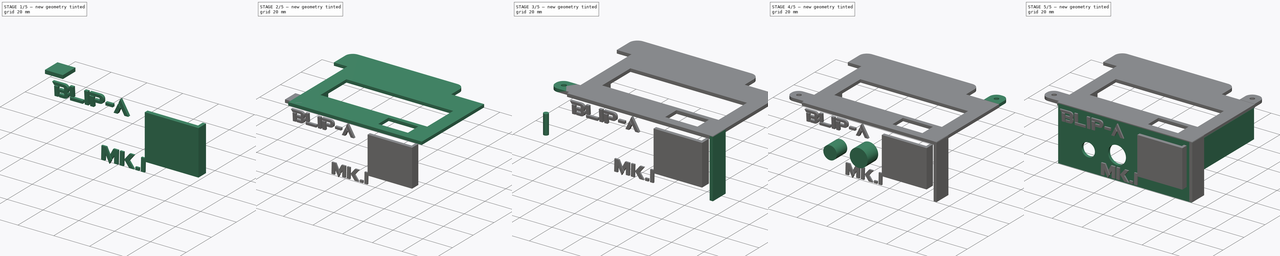
[diagram: build sequence overview — one tinted view per stage of 5, left to right]
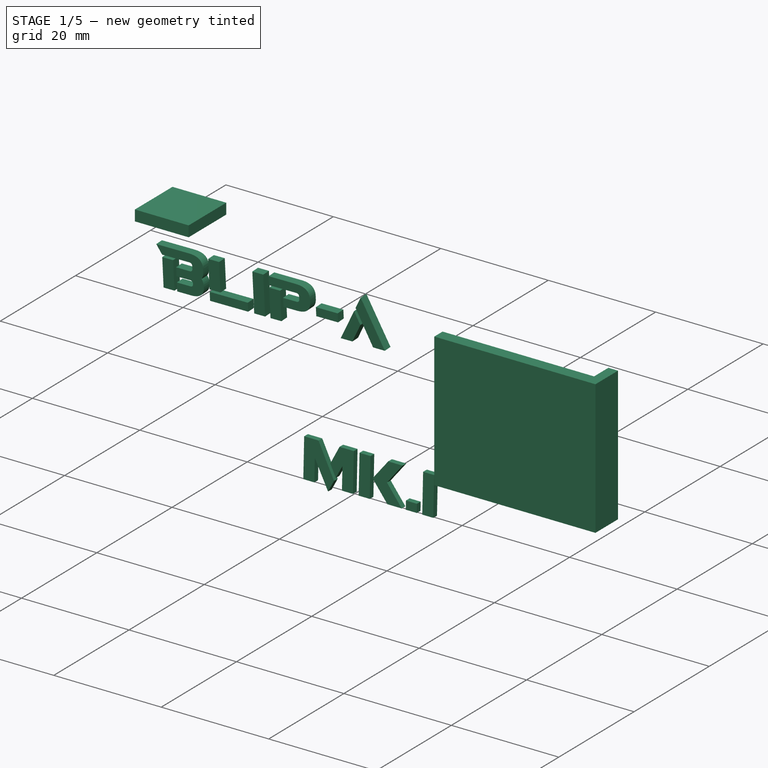
[diagram: stage 1 of 5 — iso view after this stage's code; geometry added in this stage tinted green]
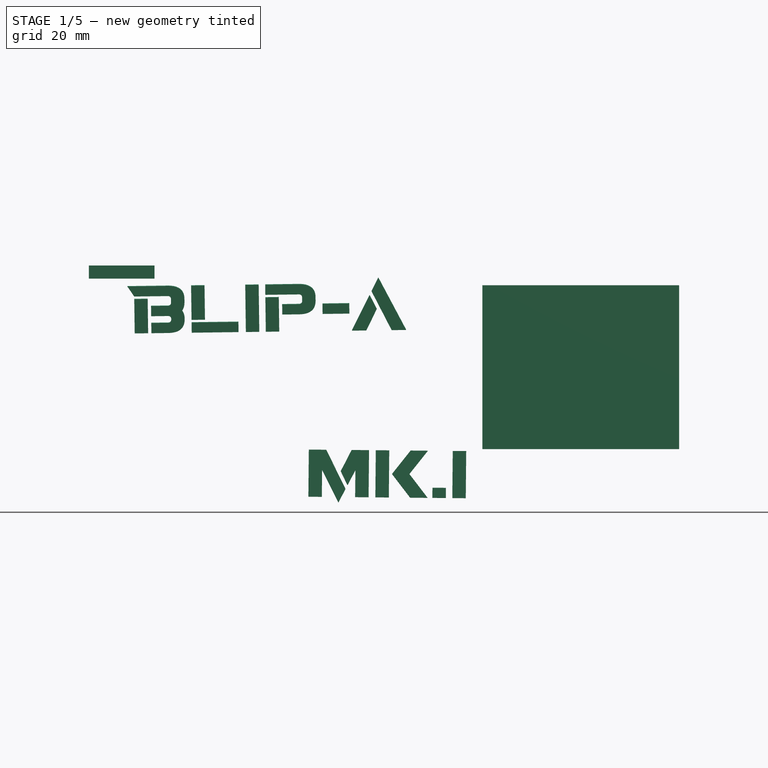
[diagram: stage 1 of 5 — front view after this stage's code; geometry added in this stage tinted green]
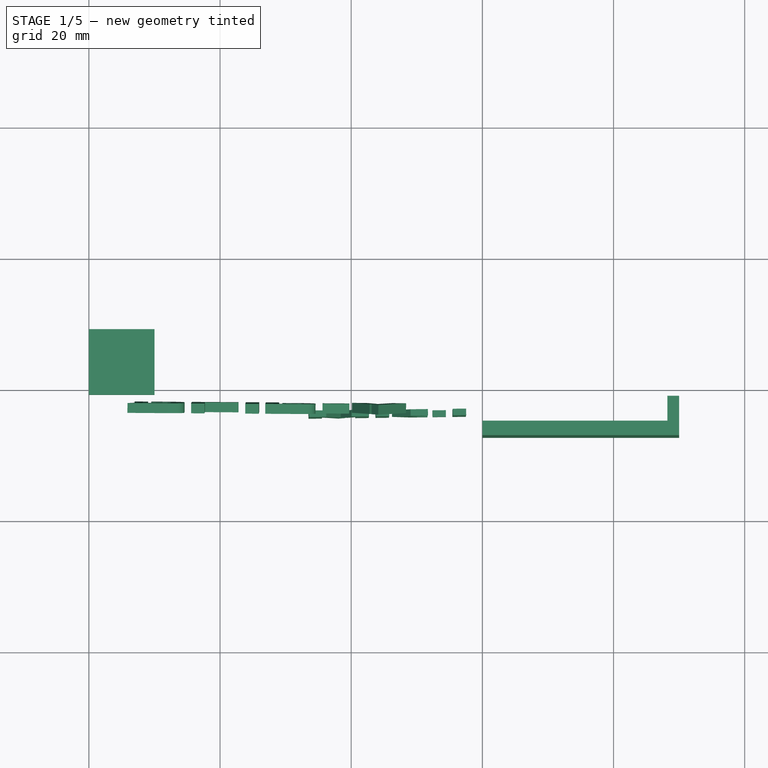
[diagram: stage 1 of 5 — top view after this stage's code; geometry added in this stage tinted green]
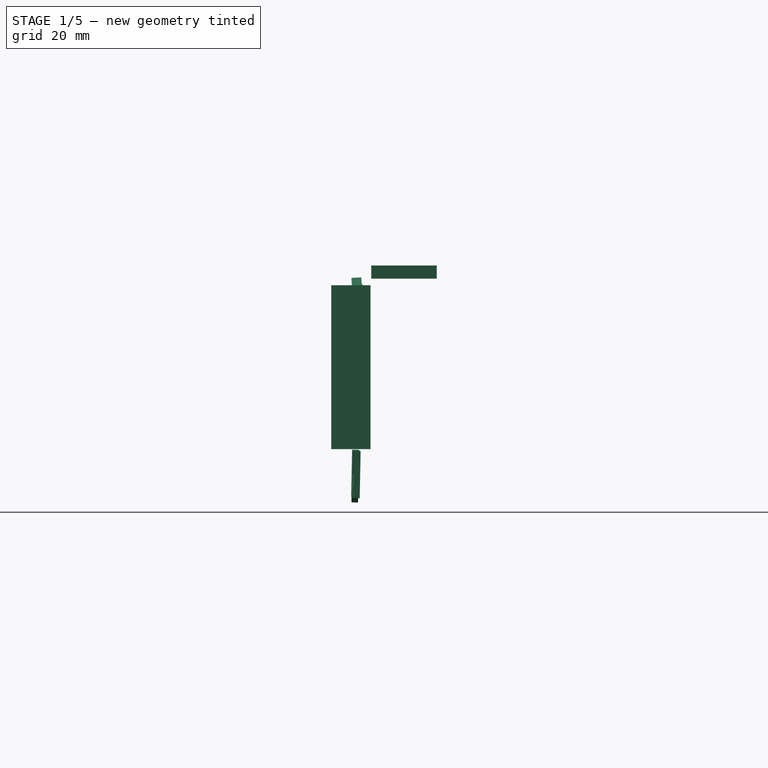
[diagram: stage 1 of 5 — right view after this stage's code; geometry added in this stage tinted green]
FCSTD DOCUMENT  (FreeCAD 0.20R29177 +426 (Git))
Label: BlipA_part2
License: All rights reserved
LicenseURL: http://en.wikipedia.org/wiki/All_rights_reserved
objects: Part::Box×10, Part::Fillet×6, Part::Cut×6, Part::Cylinder×4, Part::Extrusion×3, Part::FeaturePython×2, Part::Part2DObjectPython×2, Sketcher::SketchObject×1
note: 34 computed .brp shape members not serialized (recipe doc carries the construction recipe); baked Part::Feature solids carry a one-line shape summary decoded from their .brp

FEATURE [Part::Box] Box041  label="Cubo005"
  AttacherType = Attacher::AttachEngine3D
  Height = 30
  Length = 29
  Placement = pos=(-0.8,-43.3,-28.9) rot=(0,0,1;0rad)
  Width = 8
FEATURE [Part::Box] Box042  label="Cubo006"
  AttacherType = Attacher::AttachEngine3D
  Height = 25
  Length = 30
  Placement = pos=(0,-45.5,-25.6) rot=(0,0,1;0rad)
  Width = 6
FEATURE [Part::Cut] Cut022
  Base = -> Box042
  Placement = pos=(0,-1.9,2.2) rot=(0,0,1;0rad)
  Tool = -> Box041
FEATURE [Part::Part2DObjectPython] ShapeString  # Draft 2D object (typed FeaturePython)
  FontFile = <userpath>/Documents/3DPrinting/Font/Revamped.otf
  MakeFace = true
  Placement = pos=(-61.6182,13.5134,4.26813) rot=(0.912029,0.400447,0.08857;0.113955rad)
  Size = 8
  String = Blip-A
  Tracking = 0
FEATURE [Part::Part2DObjectPython] ShapeString001  # Draft 2D object (typed FeaturePython)
  FontFile = <userpath>/Documents/3DPrinting/Font/Revamped.otf
  MakeFace = true
  Placement = pos=(-38.1505,1.77038,1.95726) rot=(0.912029,0.400447,0.08857;0.113955rad)
  Size = 8
  String = Mk.I
  Tracking = 0
FEATURE [Part::Extrusion] Extrude003
  Base = -> ShapeString
  Dir = (0.0460582,-0.103476,0.993565)
  DirMode = 2
  FaceMakerClass = Part::FaceMakerBullseye
  LengthFwd = 1.5
  LengthRev = 0
  Placement = pos=(8.24493,-41.8239,-19.2348) rot=(0.999277,-0.027574,-0.026167;1.51916rad)
  Solid = false
  Symmetric = false
FEATURE [Part::Extrusion] Extrude005
  Base = -> ShapeString001
  Dir = (0.0460582,-0.103476,0.993565)
  DirMode = 2
  FaceMakerClass = Part::FaceMakerBullseye
  LengthFwd = 1
  LengthRev = 0
  Placement = pos=(11.1114,-42.9205,-33.2679) rot=(0.999601,-0.00761,-0.027188;1.44804rad)
  Solid = false
  Symmetric = false
FEATURE [Part::Box] Box043  label="Cubo007"
  AttacherType = Attacher::AttachEngine3D
  Height = 2
  Length = 10
  Placement = pos=(-60,-41.3,2.6) rot=(0,0,1;0rad)
  Width = 10
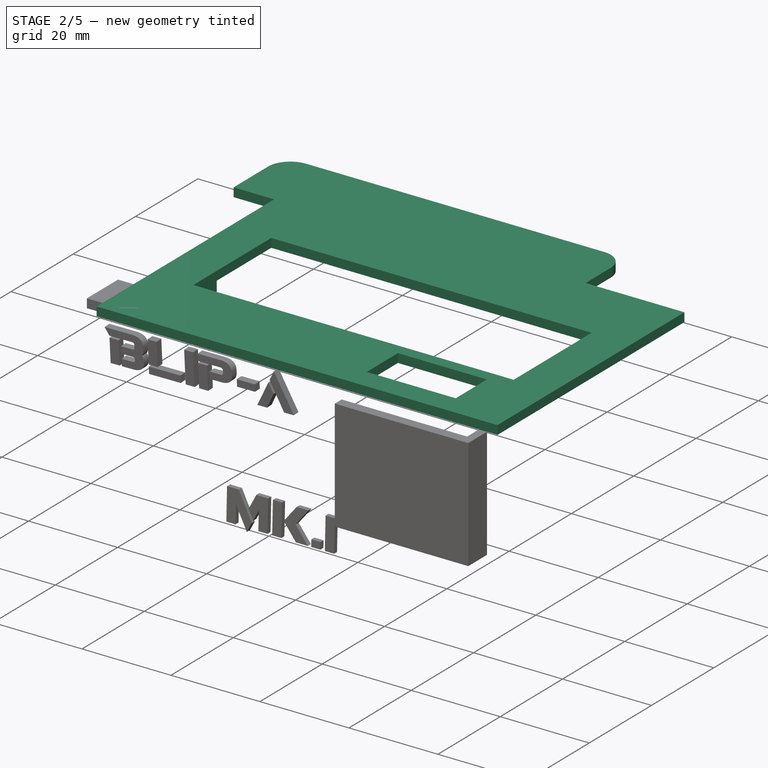
[diagram: stage 2 of 5 — iso view after this stage's code; geometry added in this stage tinted green]
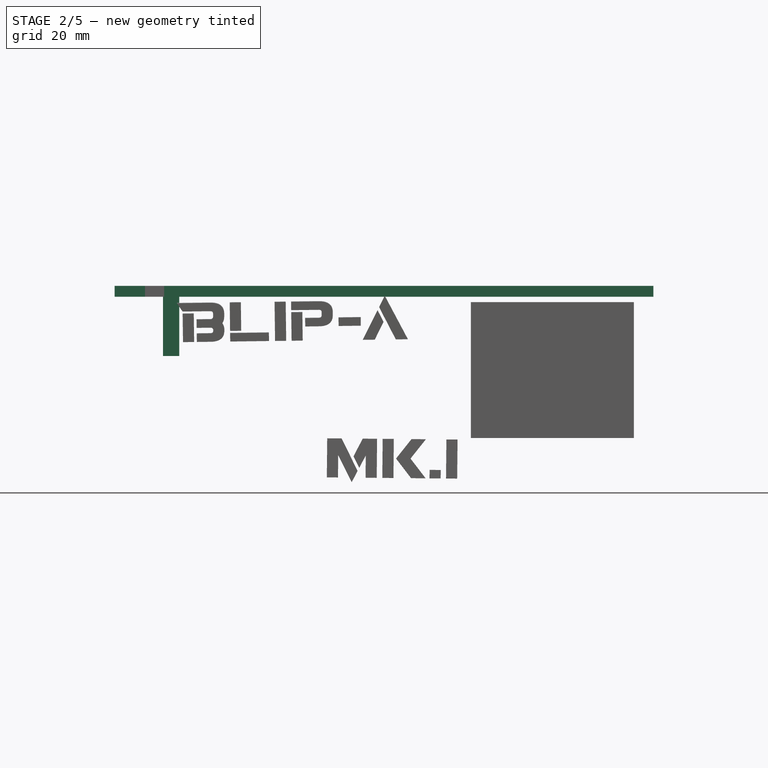
[diagram: stage 2 of 5 — front view after this stage's code; geometry added in this stage tinted green]
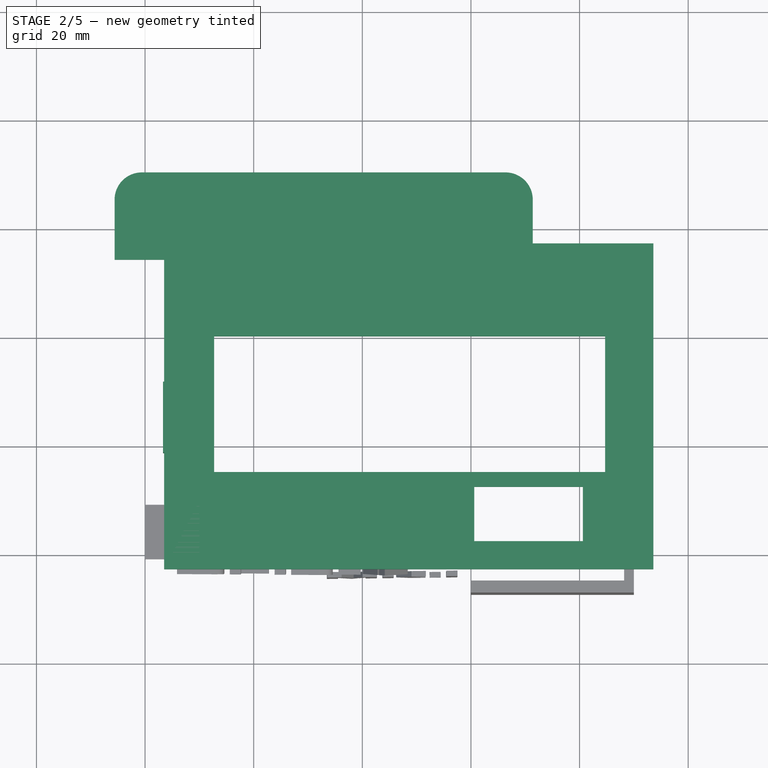
[diagram: stage 2 of 5 — top view after this stage's code; geometry added in this stage tinted green]
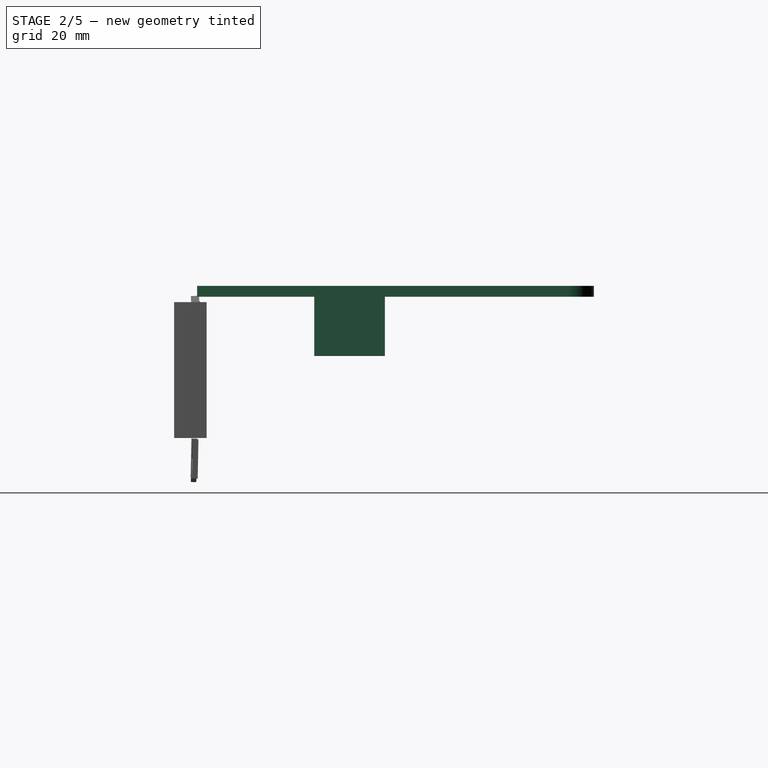
[diagram: stage 2 of 5 — right view after this stage's code; geometry added in this stage tinted green]
FEATURE [Sketcher::SketchObject] Sketch003
  FullyConstrained = false
  sketch-geometry (12):
    g0: LineSegment StartX=33.596 StartY=16.8407 StartZ=0 EndX=11.3823 EndY=16.8407 EndZ=0
    g1: LineSegment StartX=-65.6095 StartY=29.8991 StartZ=0 EndX=-65.6095 EndY=13.8239 EndZ=0
    g2: LineSegment StartX=33.596 StartY=16.8407 StartZ=0 EndX=33.596 EndY=-43.1593 EndZ=0
    g3: LineSegment StartX=-56.4982 StartY=-43.1593 StartZ=0 EndX=33.596 EndY=-43.1593 EndZ=0
    g4: LineSegment StartX=-47.2828 StartY=-0.28 StartZ=0 EndX=-47.2828 EndY=-25.28 EndZ=0
    g5: LineSegment StartX=-47.2828 StartY=-25.28 StartZ=0 EndX=24.7172 EndY=-25.28 EndZ=0
    g6: LineSegment StartX=24.7172 StartY=-25.28 StartZ=0 EndX=24.7172 EndY=-0.28 EndZ=0
    g7: LineSegment StartX=-47.2828 StartY=-0.28 StartZ=0 EndX=24.7172 EndY=-0.28 EndZ=0
    g8: LineSegment StartX=-65.6095 StartY=29.8991 StartZ=0 EndX=11.3823 EndY=29.8991 EndZ=0
    g9: LineSegment StartX=11.3823 StartY=29.8991 StartZ=0 EndX=11.3823 EndY=16.8407 EndZ=0
    g10: LineSegment StartX=-56.4982 StartY=-43.1593 StartZ=0 EndX=-56.4982 EndY=13.8239 EndZ=0
    g11: LineSegment StartX=-56.4982 StartY=13.8239 StartZ=0 EndX=-65.6095 EndY=13.8239 EndZ=0
  constraints (27):
    c: Horizontal(g0)
    c: Vertical(g1)
    c: Coincident(g2,g0)
    c: Vertical(g2)
    c: Distance(g2) = 60
    c: Coincident(g3,g2)
    c: Vertical(g4)
    c: Coincident(g5,g4)
    c: Horizontal(g5)
    c: Coincident(g6,g5)
    c: Vertical(g6)
    c: Coincident(g7,g4)
    c: Coincident(g7,g6)
    c: Horizontal(g7)
    c: Distance(g4) = 25
    c: Distance(g5) = 72
    c: Horizontal(g8)
    c: Coincident(g8,g1)
    c: Coincident(g9,g8)
    c: Vertical(g9)
    c: Coincident(g9,g0)
    c: Vertical(g10)
    c: Coincident(g11,g10)
    c: Horizontal(g11)
    c: Coincident(g1,g11)
    c: Coincident(g3,g10)
    c: Horizontal(g3)
FEATURE [Part::Extrusion] Extrude002
  Base = -> Sketch003
  Dir = (0,0,1)
  DirMode = 2
  FaceMakerClass = Part::FaceMakerBullseye
  LengthFwd = 0
  LengthRev = 2
  Placement = pos=(0,0,-1.8) rot=(0,0,1;0rad)
  Solid = true
  Symmetric = false
FEATURE [Part::Fillet] Fillet009
  Base = -> Extrude002
  Edges = 1 edges r=5: [Edge14]
FEATURE [Part::Fillet] Fillet010  label="Cover"
  Base = -> Fillet009
  Edges = 1 edges r=5: [Edge4]
  Placement = pos=(0,0,1) rot=(0,0,1;0rad)
FEATURE [Part::Box] Box039  label="Cubo003"
  AttacherType = Attacher::AttachEngine3D
  Height = 10
  Length = 20
  Placement = pos=(0.6,-38,-7.6) rot=(0,0,1;0rad)
  Width = 10
FEATURE [Part::Cut] Cut021
  Base = -> Fillet010
  Placement = pos=(0,0,5.4) rot=(0,0,1;0rad)
  Tool = -> Box039
FEATURE [Part::Box] Box040  label="Cubo004"
  AttacherType = Attacher::AttachEngine3D
  Height = 11
  Length = 3
  Placement = pos=(-56.7,-21.6,-8.3) rot=(0,0,1;0rad)
  Width = 13
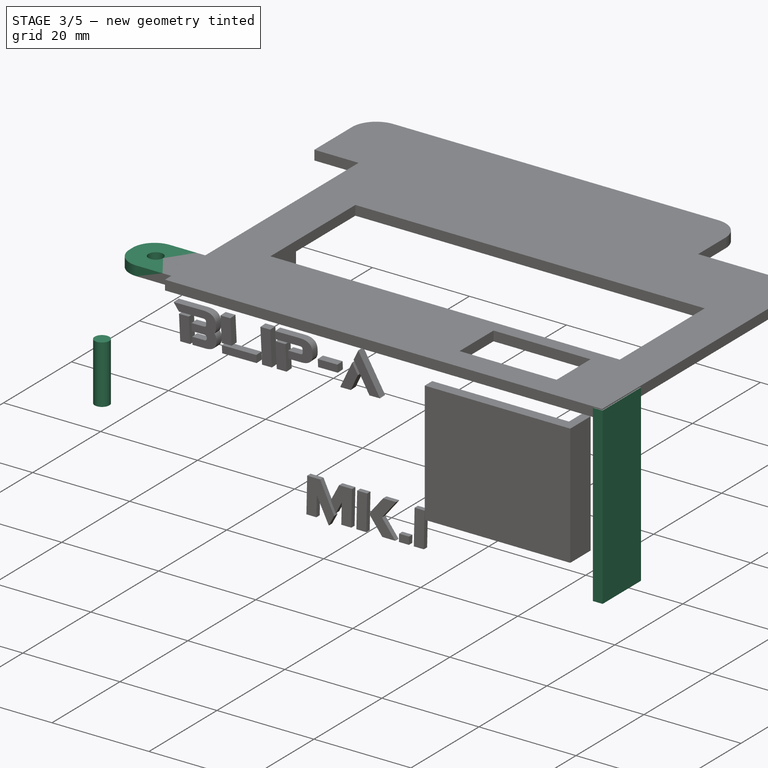
[diagram: stage 3 of 5 — iso view after this stage's code; geometry added in this stage tinted green]
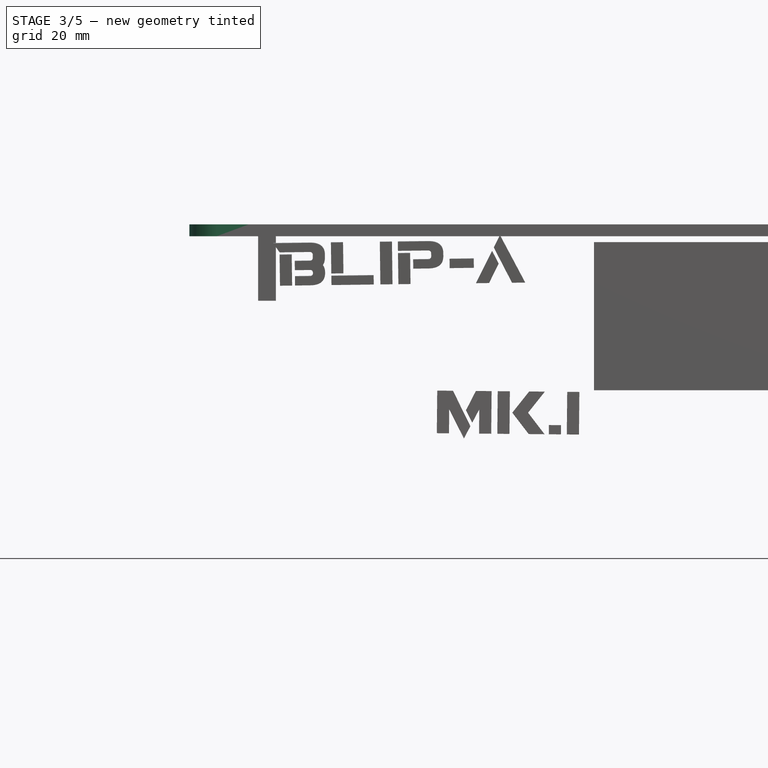
[diagram: stage 3 of 5 — front view after this stage's code; geometry added in this stage tinted green]
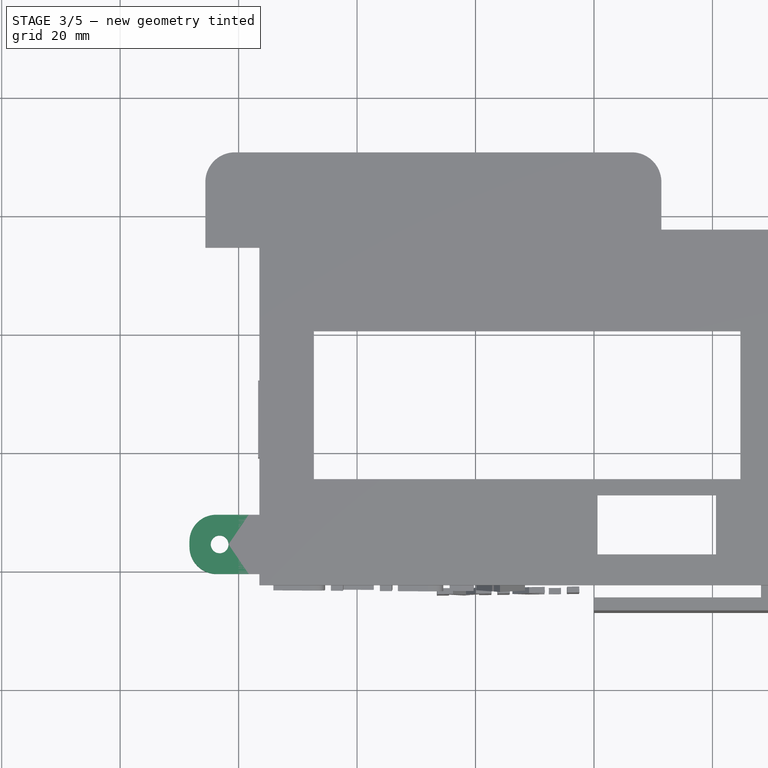
[diagram: stage 3 of 5 — top view after this stage's code; geometry added in this stage tinted green]
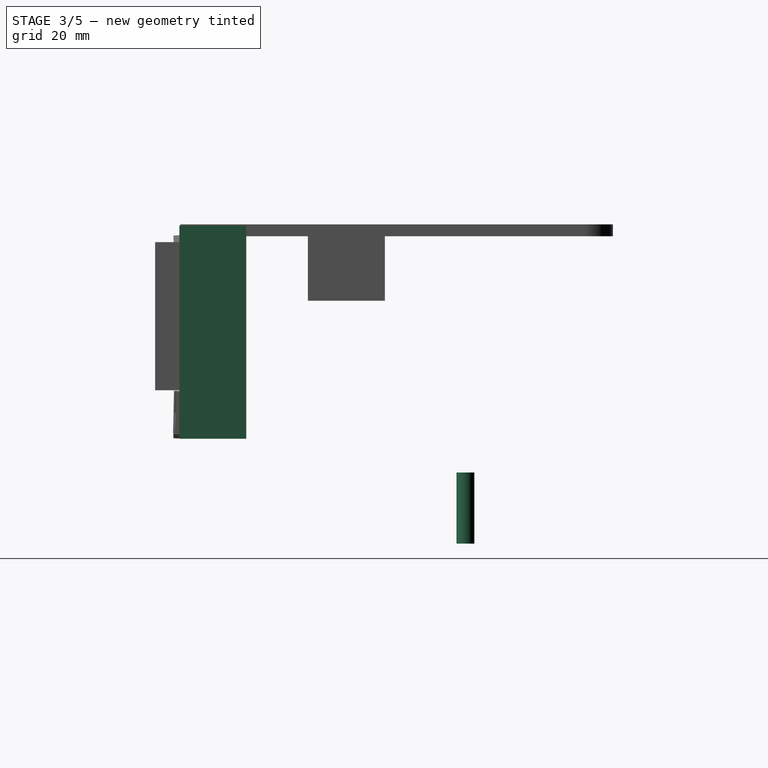
[diagram: stage 3 of 5 — right view after this stage's code; geometry added in this stage tinted green]
FEATURE [Part::Cylinder] Cylinder003
  Angle = 360
  AttacherType = Attacher::AttachEngine3D
  FirstAngle = 0
  Height = 12
  Placement = pos=(-103.2,5,-49.3) rot=(0,0,1;0rad)
  Radius = 1.5
  SecondAngle = 0
FEATURE [Part::Box] Box033  label="Cube030"
  AttacherType = Attacher::AttachEngine3D
  Height = 2
  Length = 10
  Placement = pos=(-108.3,0,-49.2) rot=(0,0,1;0rad)
  Width = 10
FEATURE [Part::Cylinder] Cylinder002  label="Cylinder"
  Angle = 360
  AttacherType = Attacher::AttachEngine3D
  FirstAngle = 0
  Height = 23
  Placement = pos=(-103.2,5,-59.77) rot=(0,0,1;0rad)
  Radius = 1.5
  SecondAngle = 0
FEATURE [Part::Cut] Cut017
  Base = -> Box033
  Tool = -> Cylinder002
FEATURE [Part::Fillet] Fillet011
  Base = -> Cut017
  Edges = 1 edges r=4.5: [Edge3]
FEATURE [Part::Fillet] Fillet012
  Base = -> Fillet011
  Edges = 1 edges r=4.6: [Edge2]
  Placement = pos=(40,-41.3,51.8) rot=(0,0,1;0rad)
FEATURE [Part::Box] Box038  label="Cubo002"
  AttacherType = Attacher::AttachEngine3D
  Height = 36
  Length = 2
  Placement = pos=(31.8,-43.3,-31.6) rot=(0,0,1;0rad)
  Width = 11.3
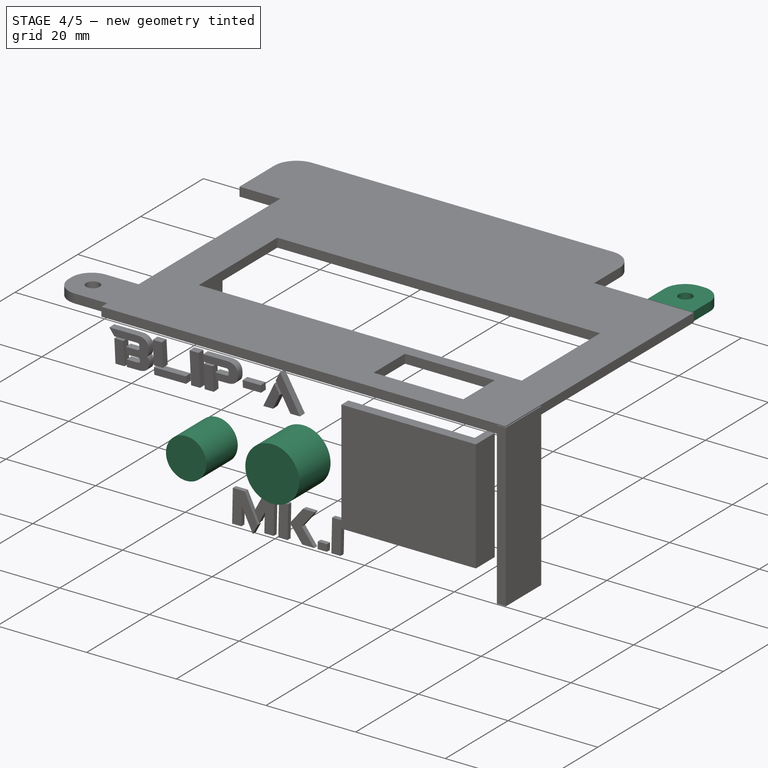
[diagram: stage 4 of 5 — iso view after this stage's code; geometry added in this stage tinted green]
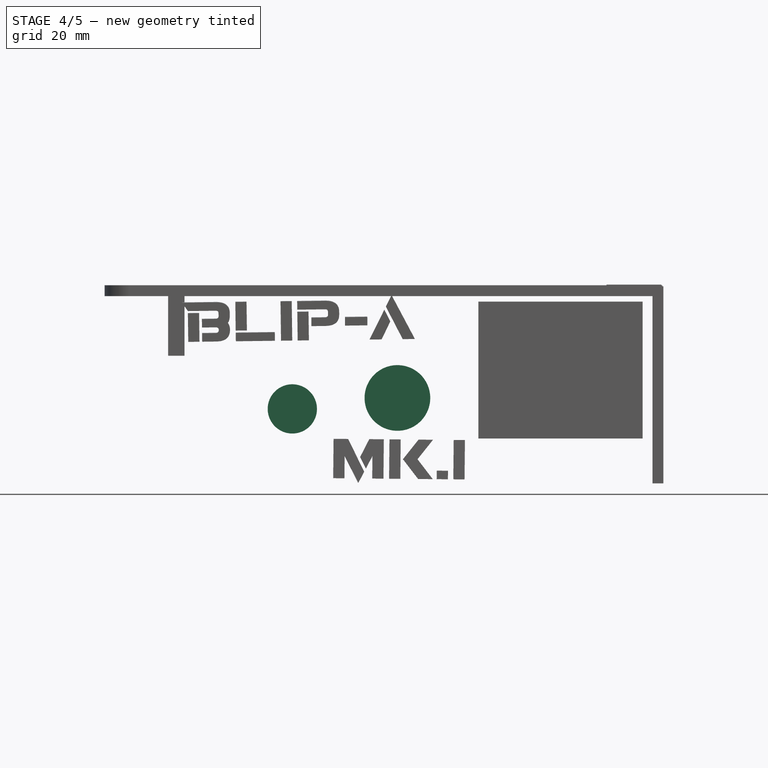
[diagram: stage 4 of 5 — front view after this stage's code; geometry added in this stage tinted green]
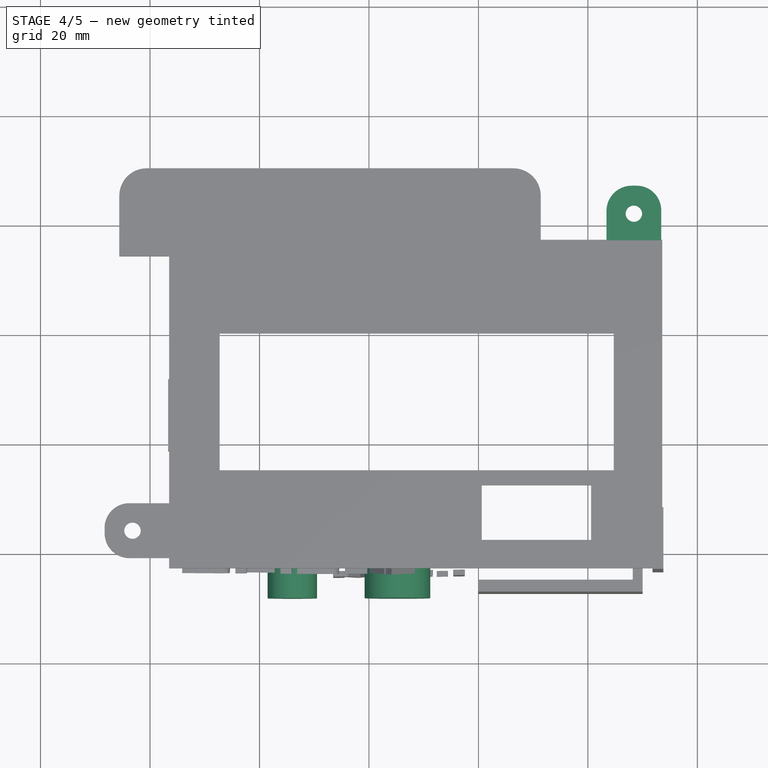
[diagram: stage 4 of 5 — top view after this stage's code; geometry added in this stage tinted green]
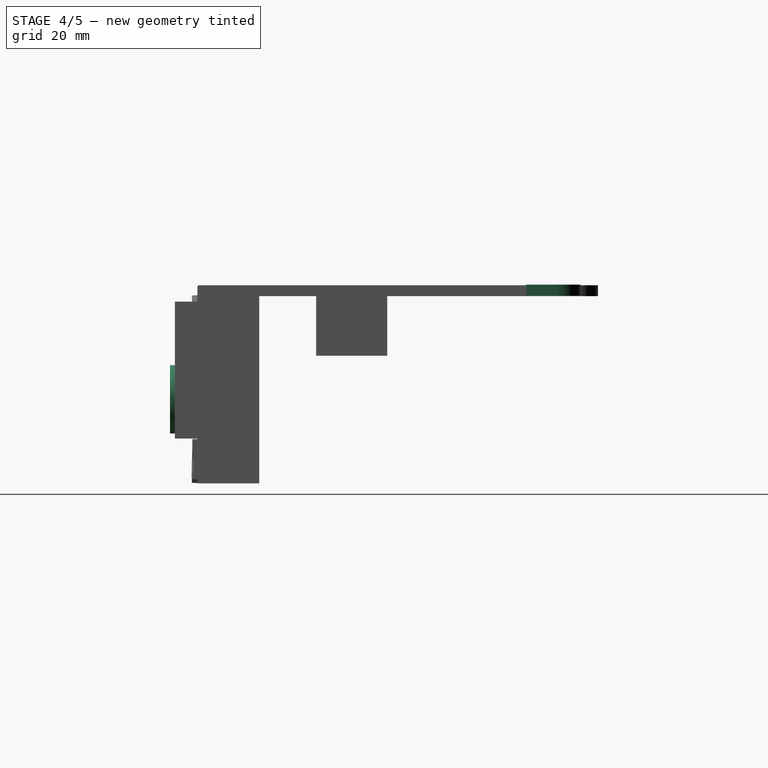
[diagram: stage 4 of 5 — right view after this stage's code; geometry added in this stage tinted green]
FEATURE [Part::Cylinder] Cylinder  label="Cilindro"
  Angle = 360
  AttacherType = Attacher::AttachEngine3D
  FirstAngle = 0
  Height = 10
  Placement = pos=(-14.8,-38.3,-16) rot=(1,0,0;1.5708rad)
  Radius = 6
  SecondAngle = 0
FEATURE [Part::Cylinder] Cylinder001  label="Cilindro001"
  Angle = 360
  AttacherType = Attacher::AttachEngine3D
  FirstAngle = 0
  Height = 10
  Placement = pos=(-34,-38.3,-18) rot=(1,0,0;1.5708rad)
  Radius = 4.5
  SecondAngle = 0
FEATURE [Part::Box] Box037  label="Cube034"
  AttacherType = Attacher::AttachEngine3D
  Height = 2
  Length = 10
  Placement = pos=(-108.3,0,-49.2) rot=(0,0,1;0rad)
  Width = 10
FEATURE [Part::Cut] Cut020
  Base = -> Box037
  Tool = -> Cylinder003
FEATURE [Part::Fillet] Fillet013
  Base = -> Cut020
  Edges = 1 edges r=4.5: [Edge3]
FEATURE [Part::Fillet] Fillet014
  Base = -> Fillet013
  Edges = 1 edges r=4.6: [Edge2]
  Placement = pos=(23.403,-81.5794,51.9) rot=(0,0,-1;1.5708rad)
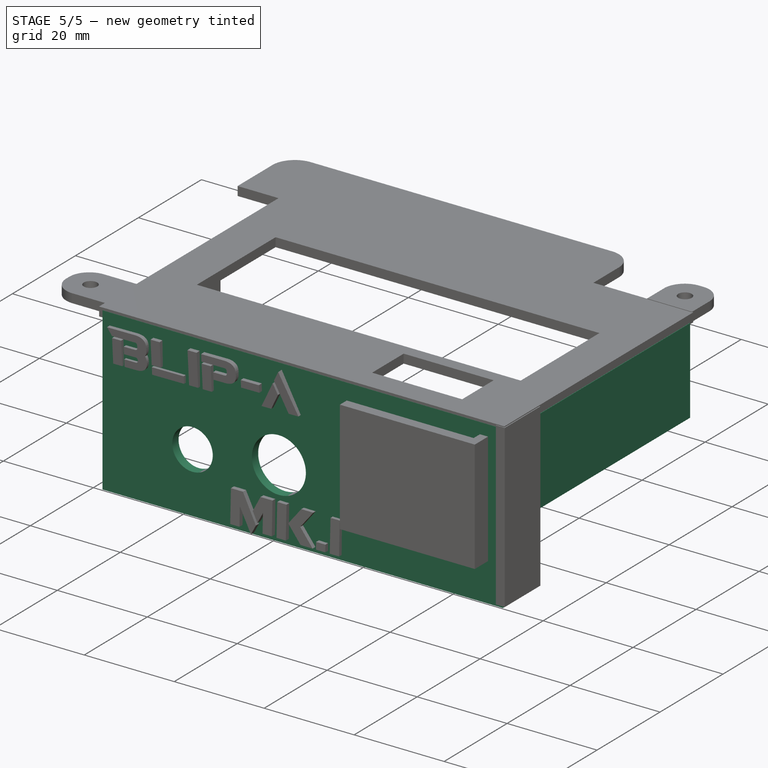
[diagram: stage 5 of 5 — iso view after this stage's code; geometry added in this stage tinted green]
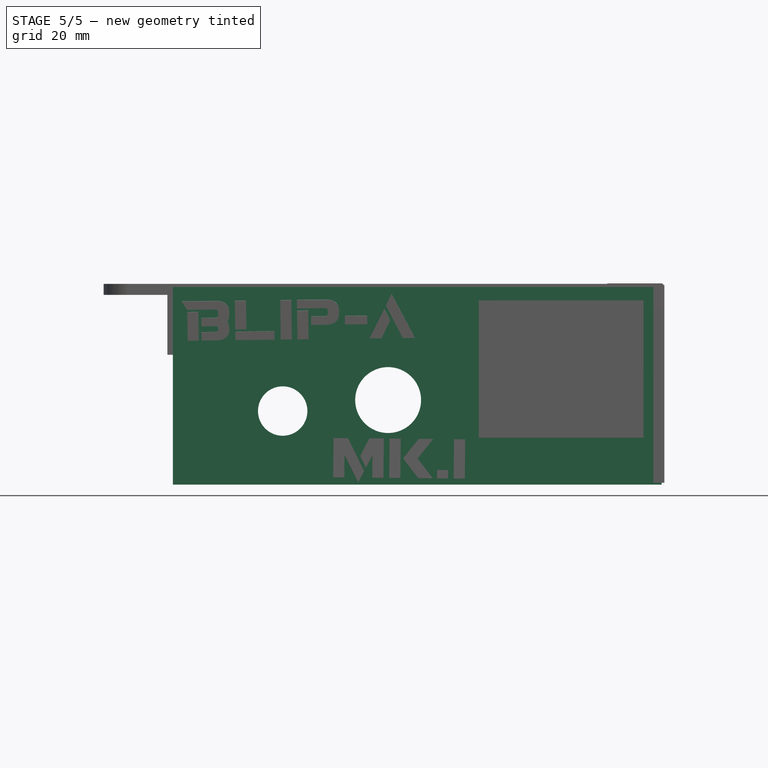
[diagram: stage 5 of 5 — front view after this stage's code; geometry added in this stage tinted green]
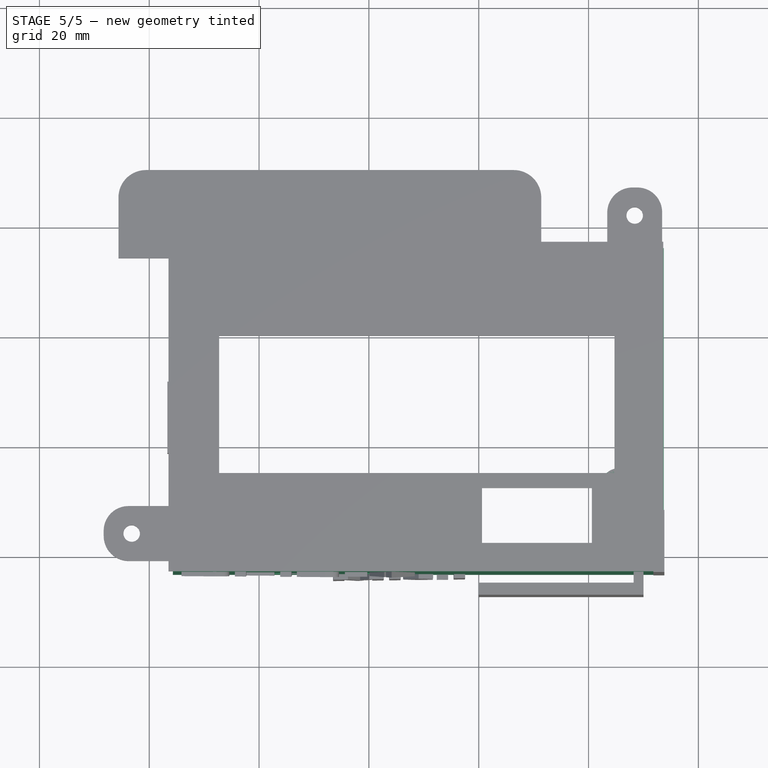
[diagram: stage 5 of 5 — top view after this stage's code; geometry added in this stage tinted green]
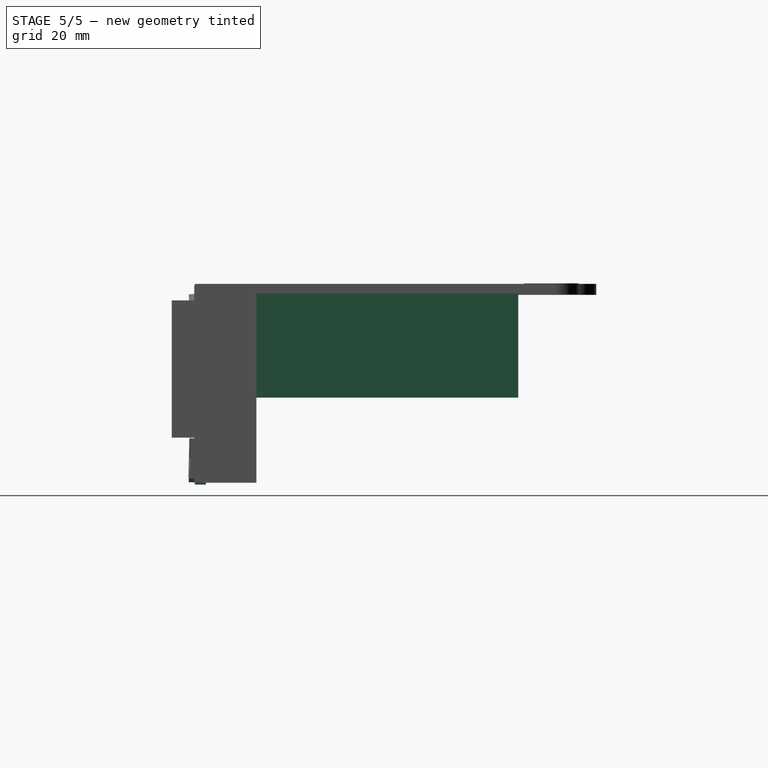
[diagram: stage 5 of 5 — right view after this stage's code; geometry added in this stage tinted green]
FEATURE [Part::FeaturePython] Tube  # WARN: FeaturePython — macro-defined, semantics opaque (R4)
  AttacherType = Attacher::AttachEngine3D
  Height = 7
  InnerRadius = 1.3
  OuterRadius = 3
  Placement = pos=(25.4,-27.4,-4.1) rot=(0,0,1;0rad)
FEATURE [Part::FeaturePython] Tube001  # WARN: FeaturePython — macro-defined, semantics opaque (R4)
  AttacherType = Attacher::AttachEngine3D
  Height = 7
  InnerRadius = 1.3
  OuterRadius = 3
  Placement = pos=(-49.4,-27.4,-4.1) rot=(0,0,1;0rad)
FEATURE [Part::Box] Box016  label="Cubo"
  AttacherType = Attacher::AttachEngine3D
  Height = 19
  Length = 2
  Placement = pos=(31.7,-40.3,-16.1) rot=(0,0,1;0rad)
  Width = 56
FEATURE [Part::Box] Box017  label="Cubo001"
  AttacherType = Attacher::AttachEngine3D
  Height = 36
  Length = 89
  Placement = pos=(-54,-42.3,-31.4) rot=(0,0,1;0rad)
  Width = 2
FEATURE [Part::Cut] Cut009
  Base = -> Box017
  Tool = -> Cylinder
FEATURE [Part::Cut] Cut010
  Base = -> Cut009
  Placement = pos=(-1.7,-0.9,-0.55) rot=(0,0,1;0rad)
  Tool = -> Cylinder001
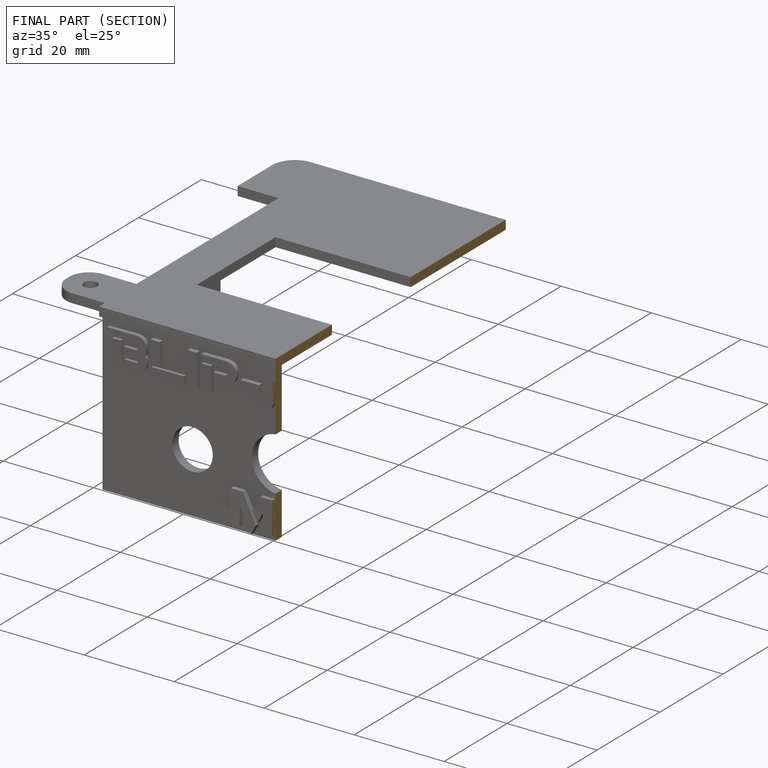
[diagram: finished part — half-section view (interior)]
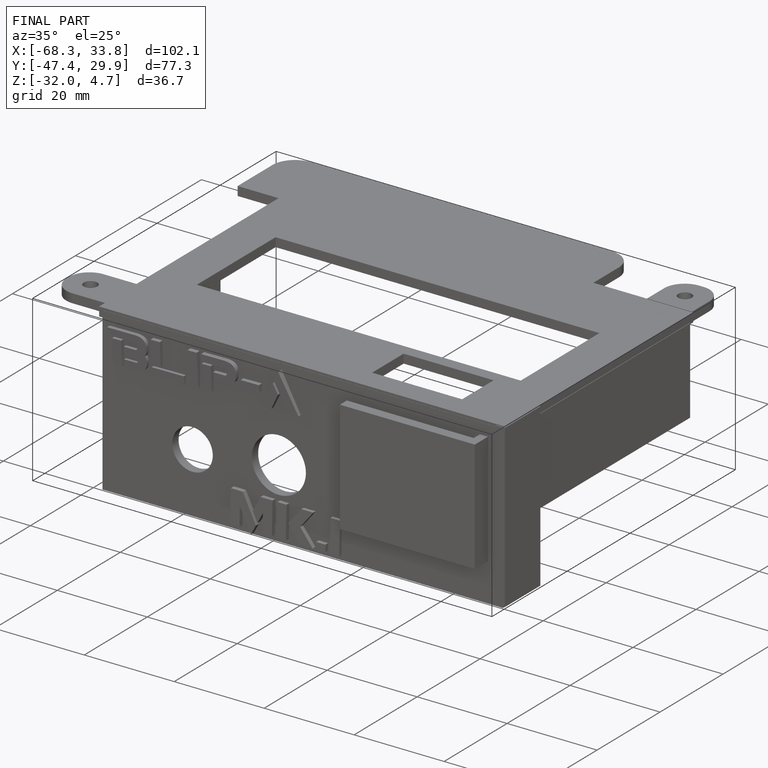
[diagram: finished part — iso view with bounding-box wireframe]
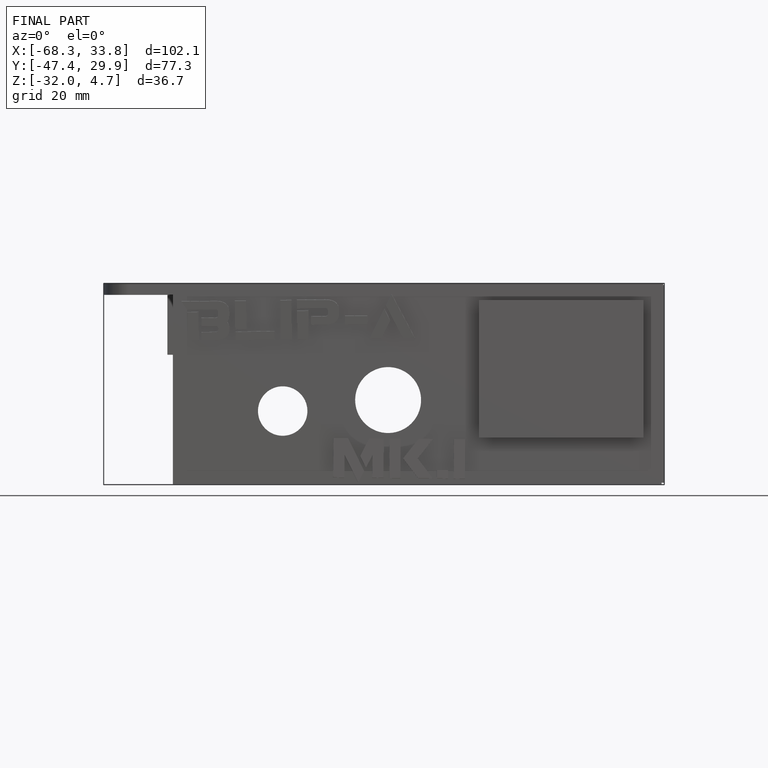
[diagram: finished part — front view with bounding-box wireframe]
